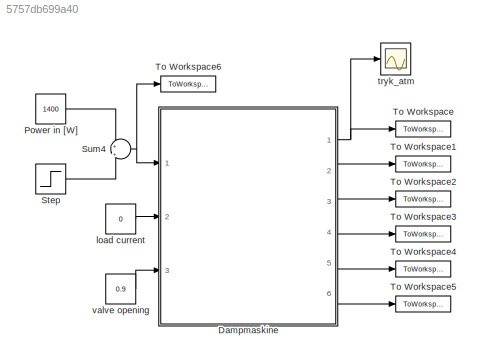
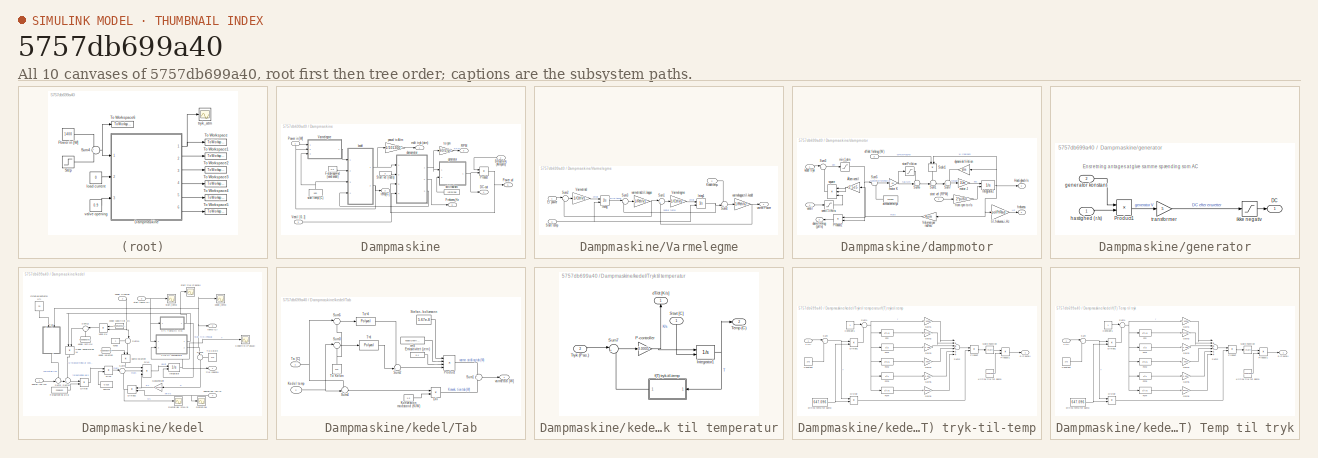
[diagram: thumbnail index - all 10 canvases of the model, root first then tree order]
MODEL slx_5757db699a40
KIND model
CONFIG AbsTol = auto
CONFIG EnableMultiTasking = on
CONFIG FixedStep = auto
CONFIG MaxStep = auto
CONFIG MinStep = auto
CONFIG RelTol = 2e-6
CONFIG SampleTimeConstraint = Unconstrained
CONFIG Solver = ode45
CONFIG SolverName = ode45
CONFIG StartTime = 0.0
CONFIG StopTime = 250
BLOCK [SubSystem] Dampmaskine
  Ports = [3, 6]
  RequestExecContextInheritance = off
  Variant = off
BLOCK [Inport] Dampmaskine/Belastning (Ampere)
  IconDisplay = Port number
  Port = 2
BLOCK [Outport] Dampmaskine/DC-out
  IconDisplay = Port number
  Port = 4
BLOCK [Outport] Dampmaskine/Frekvens_Hz
  IconDisplay = Port number
  Port = 6
BLOCK [Constant] Dampmaskine/Fyldningsgrad (vand andel)
  Value = 0.5
BLOCK [Inport] Dampmaskine/Power in [W]
  IconDisplay = Port number
BLOCK [Outport] Dampmaskine/Power ud
  IconDisplay = Port number
  Port = 5
BLOCK [Product] Dampmaskine/Product
  InputSameDT = off
  OutDataTypeStr = Inherit: Inherit via internal rule
  Ports = [2, 1]
  SaturateOnIntegerOverflow = off
BLOCK [Outport] Dampmaskine/RPM
  IconDisplay = Port number
  Port = 3
BLOCK [Constant] Dampmaskine/Start vel (rad//s)
  Value = 0
BLOCK [SubSystem] Dampmaskine/Varmelegme
  Ports = [3, 1]
  RequestExecContextInheritance = off
  Variant = off
BLOCK [Inport] Dampmaskine/Varmelegme/El power
  IconDisplay = Port number
BLOCK [Integrator] Dampmaskine/Varmelegme/Integ
  InitialConditionSource = external
  Ports = [2, 1]
BLOCK [Integrator] Dampmaskine/Varmelegme/Integ1
  InitialConditionSource = external
  Ports = [2, 1]
BLOCK [Inport] Dampmaskine/Varmelegme/Kedeltemp.
  IconDisplay = Port number
  Port = 2
BLOCK [Inport] Dampmaskine/Varmelegme/Start temp
  IconDisplay = Port number
  Port = 3
BLOCK [Sum] Dampmaskine/Varmelegme/Sum1
  IconShape = round
  InputSameDT = off
  Inputs = |+-
  OutDataTypeStr = Inherit: Inherit via internal rule
  Ports = [2, 1]
  SaturateOnIntegerOverflow = off
BLOCK [Sum] Dampmaskine/Varmelegme/Sum2
  IconShape = round
  InputSameDT = off
  Inputs = |+-
  OutDataTypeStr = Inherit: Inherit via internal rule
  Ports = [2, 1]
  SaturateOnIntegerOverflow = off
BLOCK [Sum] Dampmaskine/Varmelegme/Sum3
  IconShape = round
  InputSameDT = off
  Inputs = |+-
  OutDataTypeStr = Inherit: Inherit via internal rule
  Ports = [2, 1]
  SaturateOnIntegerOverflow = off
BLOCK [Sum] Dampmaskine/Varmelegme/Sum4
  IconShape = round
  InputSameDT = off
  Inputs = -+|
  OutDataTypeStr = Inherit: Inherit via internal rule
  Ports = [2, 1]
  SaturateOnIntegerOverflow = off
BLOCK [Gain] Dampmaskine/Varmelegme/Varmelegme
  Gain = 1/CthV2
  OutDataTypeStr = Inherit: Inherit via internal rule
  ParamDataTypeStr = Inherit: Inherit via internal rule
  SaturateOnIntegerOverflow = off
BLOCK [Gain] Dampmaskine/Varmelegme/Varmetråd
  Gain = 1/CthV1
  OutDataTypeStr = Inherit: Inherit via internal rule
  ParamDataTypeStr = Inherit: Inherit via internal rule
  SaturateOnIntegerOverflow = off
BLOCK [Outport] Dampmaskine/Varmelegme/varme Power
  IconDisplay = Port number
BLOCK [Gain] Dampmaskine/Varmelegme/varmekappe-til-kedel
  Gain = 1/RthV2
  OutDataTypeStr = Inherit: Inherit via internal rule
  ParamDataTypeStr = Inherit: Inherit via internal rule
  SaturateOnIntegerOverflow = off
BLOCK [Gain] Dampmaskine/Varmelegme/varmetråd-til-kappe
  Gain = 1/RthV1
  OutDataTypeStr = Inherit: Inherit via internal rule
  ParamDataTypeStr = Inherit: Inherit via internal rule
  SaturateOnIntegerOverflow = off
BLOCK [Inport] Dampmaskine/Ventil [0..1]
  IconDisplay = Port number
  Port = 3
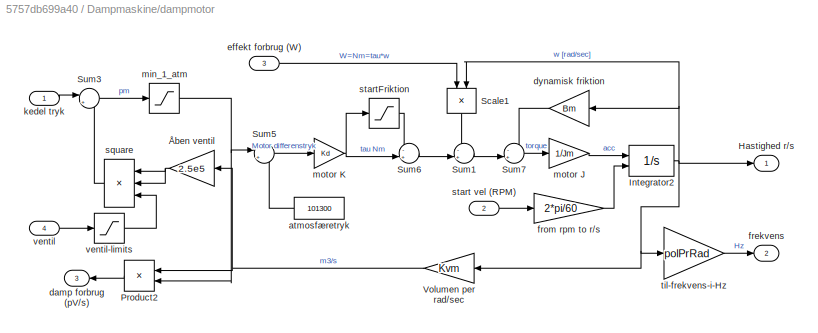
BLOCK [SubSystem] Dampmaskine/dampmotor
  Ports = [4, 3]
  RequestExecContextInheritance = off
  Variant = off
BLOCK [Outport] Dampmaskine/dampmotor/Hastighed r//s
  IconDisplay = Port number
BLOCK [Integrator] Dampmaskine/dampmotor/Integrator2
  InitialCondition = 1332/60*2*pi
  InitialConditionSource = external
  LimitOutput = on
  LowerSaturationLimit = 0.001
  Ports = [2, 1]
BLOCK [Product] Dampmaskine/dampmotor/Product2
  InputSameDT = off
  OutDataTypeStr = Inherit: Inherit via internal rule
  Ports = [2, 1]
  SaturateOnIntegerOverflow = off
BLOCK [Product] Dampmaskine/dampmotor/Scale1
  InputSameDT = off
  Inputs = */
  OutDataTypeStr = Inherit: Inherit via internal rule
  Ports = [2, 1]
  RndMeth = Floor
  SaturateOnIntegerOverflow = off
BLOCK [Sum] Dampmaskine/dampmotor/Sum1
  IconShape = round
  InputSameDT = off
  Inputs = -+|
  OutDataTypeStr = Inherit: Inherit via internal rule
  Ports = [2, 1]
  SaturateOnIntegerOverflow = off
BLOCK [Sum] Dampmaskine/dampmotor/Sum3
  IconShape = round
  InputSameDT = off
  Inputs = |+-
  OutDataTypeStr = Inherit: Inherit via internal rule
  Ports = [2, 1]
  SaturateOnIntegerOverflow = off
BLOCK [Sum] Dampmaskine/dampmotor/Sum5
  IconShape = round
  InputSameDT = off
  Inputs = |+-
  OutDataTypeStr = Inherit: Inherit via internal rule
  Ports = [2, 1]
  SaturateOnIntegerOverflow = off
BLOCK [Sum] Dampmaskine/dampmotor/Sum6
  IconShape = round
  InputSameDT = off
  Inputs = -+|
  OutDataTypeStr = Inherit: Inherit via internal rule
  Ports = [2, 1]
  SaturateOnIntegerOverflow = off
BLOCK [Sum] Dampmaskine/dampmotor/Sum7
  IconShape = round
  InputSameDT = off
  Inputs = -+|
  OutDataTypeStr = Inherit: Inherit via internal rule
  Ports = [2, 1]
  SaturateOnIntegerOverflow = off
BLOCK [Gain] Dampmaskine/dampmotor/Volumen per rad//sec
  Gain = Kvm
  OutDataTypeStr = Inherit: Inherit via internal rule
  ParamDataTypeStr = Inherit: Inherit via internal rule
  SaturateOnIntegerOverflow = off
BLOCK [Constant] Dampmaskine/dampmotor/atmosfæretryk
  Value = 101300
BLOCK [Outport] Dampmaskine/dampmotor/damp forbrug (pV//s)
  IconDisplay = Port number
  Port = 3
BLOCK [Gain] Dampmaskine/dampmotor/dynamisk friktion
  Gain = Bm
  OutDataTypeStr = Inherit: Inherit via internal rule
  ParamDataTypeStr = Inherit: Inherit via internal rule
  SaturateOnIntegerOverflow = off
BLOCK [Inport] Dampmaskine/dampmotor/effekt forbrug (W)
  IconDisplay = Port number
  Port = 3
BLOCK [Outport] Dampmaskine/dampmotor/frekvens
  IconDisplay = Port number
  Port = 2
BLOCK [Gain] Dampmaskine/dampmotor/from rpm to r//s
  Gain = 2*pi/60
  OutDataTypeStr = Inherit: Inherit via internal rule
  ParamDataTypeStr = Inherit: Inherit via internal rule
  SaturateOnIntegerOverflow = off
BLOCK [Inport] Dampmaskine/dampmotor/kedel tryk
  IconDisplay = Port number
BLOCK [Saturate] Dampmaskine/dampmotor/min_1_atm
  InputPortMap = u0
  LowerLimit = 101300
  Ports = [1, 1]
  UpperLimit = 1e8
BLOCK [Gain] Dampmaskine/dampmotor/motor J
  Gain = 1/Jm
  OutDataTypeStr = Inherit: Inherit via internal rule
  ParamDataTypeStr = Inherit: Inherit via internal rule
  SaturateOnIntegerOverflow = off
BLOCK [Gain] Dampmaskine/dampmotor/motor K
  Gain = Kd
  OutDataTypeStr = Inherit: Inherit via internal rule
  ParamDataTypeStr = Inherit: Inherit via internal rule
  SaturateOnIntegerOverflow = off
BLOCK [Product] Dampmaskine/dampmotor/square
  InputSameDT = off
  Inputs = **/
  OutDataTypeStr = Inherit: Inherit via internal rule
  Ports = [3, 1]
  SaturateOnIntegerOverflow = off
BLOCK [Inport] Dampmaskine/dampmotor/start vel (RPM)
  IconDisplay = Port number
  Port = 2
BLOCK [Saturate] Dampmaskine/dampmotor/startFriktion
  InputPortMap = u0
  LowerLimit = -startFriction
  Ports = [1, 1]
  UpperLimit = startFriction
BLOCK [Gain] Dampmaskine/dampmotor/til-frekvens-i-Hz
  Gain = polPrRad
  OutDataTypeStr = Inherit: Inherit via internal rule
  ParamDataTypeStr = Inherit: Inherit via internal rule
  SaturateOnIntegerOverflow = off
BLOCK [Inport] Dampmaskine/dampmotor/ventil
  IconDisplay = Port number
  Port = 4
BLOCK [Saturate] Dampmaskine/dampmotor/ventil-limits
  InputPortMap = u0
  LowerLimit = 1e-5
  Ports = [1, 1]
  UpperLimit = 1
BLOCK [Gain] Dampmaskine/dampmotor/Åben ventil
  Gain = 2.5e5
  OutDataTypeStr = Inherit: Inherit via internal rule
  ParamDataTypeStr = Inherit: Inherit via internal rule
  SaturateOnIntegerOverflow = off
BLOCK [SubSystem] Dampmaskine/generator
  Ports = [2, 1]
  RequestExecContextInheritance = off
  Variant = off
BLOCK [Outport] Dampmaskine/generator/DC
  IconDisplay = Port number
BLOCK [Product] Dampmaskine/generator/Product1
  InputSameDT = off
  OutDataTypeStr = Inherit: Inherit via internal rule
  Ports = [2, 1]
  SaturateOnIntegerOverflow = off
BLOCK [Inport] Dampmaskine/generator/generator konstant
  IconDisplay = Port number
  Port = 2
BLOCK [Inport] Dampmaskine/generator/hastighed (r//s)
  IconDisplay = Port number
BLOCK [Saturate] Dampmaskine/generator/ikke negativ
  InputPortMap = u0
  LowerLimit = 0
  Ports = [1, 1]
  UpperLimit = 300
BLOCK [Gain] Dampmaskine/generator/transformer
  Gain = 5
  OutDataTypeStr = Inherit: Inherit via internal rule
  ParamDataTypeStr = Inherit: Inherit via internal rule
  SaturateOnIntegerOverflow = off
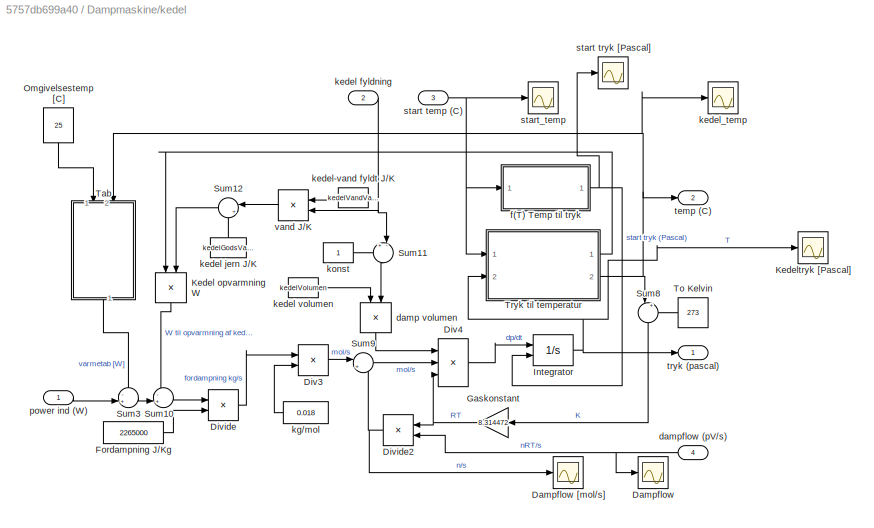
BLOCK [SubSystem] Dampmaskine/kedel
  Ports = [4, 2]
  RequestExecContextInheritance = off
  Variant = off
BLOCK [Scope] Dampmaskine/kedel/Dampflow
  NumInputPorts = 1
  Ports = [1]
  ScopeSpecificationString = C++SS(StrPVP('Location','[69, 361, 1100, 1103]'),StrPVP('Open','off'),StrPVP('ZoomMode','xonly'),MxPVP('AxesTitles',53,'struct(''axes1'',''%<SignalLabel>'')'),MxPVP('ScopeGraphics',56,'struct(''FigureColor'',''[0.5 0.5 0.5]'',''AxesColor'',''[0 0 0]'',''AxesTickColor'',''[1 1 1]'',''LineColors'',''[1 1 0;1 0 1;0 1 1;1 0 0;0 1 0;0 0 1]'',''LineStyles'',''-|-|-|-|-|-'',''LineWidths'',''[0.5 0.5 0.5 ...<+345ch>
BLOCK [Scope] Dampmaskine/kedel/Dampflow [mol//s]
  NumInputPorts = 1
  Ports = [1]
  ScopeSpecificationString = C++SS(StrPVP('Location','[69, 361, 1100, 1103]'),StrPVP('Open','off'),StrPVP('ZoomMode','xonly'),MxPVP('AxesTitles',53,'struct(''axes1'',''%<SignalLabel>'')'),MxPVP('ScopeGraphics',56,'struct(''FigureColor'',''[0.5 0.5 0.5]'',''AxesColor'',''[0 0 0]'',''AxesTickColor'',''[1 1 1]'',''LineColors'',''[1 1 0;1 0 1;0 1 1;1 0 0;0 1 0;0 0 1]'',''LineStyles'',''-|-|-|-|-|-'',''LineWidths'',''[0.5 0.5 0.5 ...<+345ch>
BLOCK [Product] Dampmaskine/kedel/Div3
  InputSameDT = off
  Inputs = */
  OutDataTypeStr = Inherit: Inherit via internal rule
  Ports = [2, 1]
  RndMeth = Floor
  SaturateOnIntegerOverflow = off
BLOCK [Product] Dampmaskine/kedel/Div4
  InputSameDT = off
  Inputs = /**
  OutDataTypeStr = Inherit: Inherit via internal rule
  Ports = [3, 1]
  RndMeth = Floor
  SaturateOnIntegerOverflow = off
BLOCK [Product] Dampmaskine/kedel/Divide
  InputSameDT = off
  Inputs = */
  OutDataTypeStr = Inherit: Inherit via internal rule
  Ports = [2, 1]
  RndMeth = Floor
  SaturateOnIntegerOverflow = off
BLOCK [Product] Dampmaskine/kedel/Divide2
  InputSameDT = off
  Inputs = /*
  OutDataTypeStr = Inherit: Inherit via internal rule
  Ports = [2, 1]
  RndMeth = Floor
  SaturateOnIntegerOverflow = off
BLOCK [Constant] Dampmaskine/kedel/Fordampning J//Kg
  Value = 2265000
BLOCK [Gain] Dampmaskine/kedel/Gaskonstant
  Gain = 8.314472
  OutDataTypeStr = Inherit: Inherit via internal rule
  ParamDataTypeStr = Inherit: Inherit via internal rule
  SaturateOnIntegerOverflow = off
BLOCK [Integrator] Dampmaskine/kedel/Integrator
  InitialCondition = 122.7
  InitialConditionSource = external
  Ports = [2, 1]
BLOCK [Product] Dampmaskine/kedel/Kedel opvarmning W
  InputSameDT = off
  OutDataTypeStr = Inherit: Inherit via internal rule
  Ports = [2, 1]
  SaturateOnIntegerOverflow = off
BLOCK [Scope] Dampmaskine/kedel/Kedeltryk [Pascal]
  NumInputPorts = 1
  Ports = [1]
  ScopeSpecificationString = C++SS(StrPVP('Location','[69, 361, 1100, 1103]'),StrPVP('Open','off'),StrPVP('ZoomMode','yonly'),MxPVP('AxesTitles',53,'struct(''axes1'',''%<SignalLabel>'')'),MxPVP('ScopeGraphics',56,'struct(''FigureColor'',''[0.5 0.5 0.5]'',''AxesColor'',''[0 0 0]'',''AxesTickColor'',''[1 1 1]'',''LineColors'',''[1 1 0;1 0 1;0 1 1;1 0 0;0 1 0;0 0 1]'',''LineStyles'',''-|-|-|-|-|-'',''LineWidths'',''[0.5 0.5 0.5 ...<+345ch>  <repeated x4 — deduplicated; at blocks: Kedeltryk [Pascal], kedel_temp, start tryk [Pascal], start_temp>
BLOCK [Constant] Dampmaskine/kedel/Omgivelsestemp [C]
  Value = 25
BLOCK [Sum] Dampmaskine/kedel/Sum10
  IconShape = round
  InputSameDT = off
  Inputs = -+|
  OutDataTypeStr = Inherit: Inherit via internal rule
  Ports = [2, 1]
  SaturateOnIntegerOverflow = off
BLOCK [Sum] Dampmaskine/kedel/Sum11
  IconShape = round
  InputSameDT = off
  Inputs = +-|
  OutDataTypeStr = Inherit: Inherit via internal rule
  Ports = [2, 1]
  SaturateOnIntegerOverflow = off
BLOCK [Sum] Dampmaskine/kedel/Sum12
  IconShape = round
  InputSameDT = off
  Inputs = |++
  OutDataTypeStr = Inherit: Inherit via internal rule
  Ports = [2, 1]
  SaturateOnIntegerOverflow = off
BLOCK [Sum] Dampmaskine/kedel/Sum3
  IconShape = round
  InputSameDT = off
  Inputs = -+|
  OutDataTypeStr = Inherit: Inherit via internal rule
  Ports = [2, 1]
  SaturateOnIntegerOverflow = off
BLOCK [Sum] Dampmaskine/kedel/Sum8
  IconShape = round
  InputSameDT = off
  Inputs = |++
  OutDataTypeStr = Inherit: Inherit via internal rule
  Ports = [2, 1]
  SaturateOnIntegerOverflow = off
BLOCK [Sum] Dampmaskine/kedel/Sum9
  IconShape = round
  InputSameDT = off
  Inputs = |+-
  OutDataTypeStr = Inherit: Inherit via internal rule
  Ports = [2, 1]
  SaturateOnIntegerOverflow = off
BLOCK [SubSystem] Dampmaskine/kedel/Tab
  Ports = [2, 1]
  RequestExecContextInheritance = off
  Variant = off
BLOCK [Product] Dampmaskine/kedel/Tab/Div
  InputSameDT = off
  Inputs = */
  OutDataTypeStr = Inherit: Inherit via internal rule
  Ports = [2, 1]
  RndMeth = Floor
  SaturateOnIntegerOverflow = off
BLOCK [Constant] Dampmaskine/kedel/Tab/Emissitivitet (jern)
  Value = 0.4
BLOCK [Inport] Dampmaskine/kedel/Tab/Kedel temp
  IconDisplay = Port number
  Port = 2
BLOCK [Constant] Dampmaskine/kedel/Tab/Konvektion modstand (K//W)
  Value = 1.5
BLOCK [Product] Dampmaskine/kedel/Tab/Product
  InputSameDT = off
  Inputs = 4
  OutDataTypeStr = Inherit: Inherit via internal rule
  Ports = [4, 1]
  SaturateOnIntegerOverflow = off
BLOCK [Constant] Dampmaskine/kedel/Tab/Stefan- boltzmann
  Value = 5.67e-8
BLOCK [Sum] Dampmaskine/kedel/Tab/Sum1
  IconShape = round
  InputSameDT = off
  Inputs = +|+
  OutDataTypeStr = Inherit: Inherit via internal rule
  Ports = [2, 1]
  SaturateOnIntegerOverflow = off
BLOCK [Sum] Dampmaskine/kedel/Tab/Sum2
  IconShape = round
  InputSameDT = off
  Inputs = -+|
  OutDataTypeStr = Inherit: Inherit via internal rule
  Ports = [2, 1]
  SaturateOnIntegerOverflow = off
BLOCK [Sum] Dampmaskine/kedel/Tab/Sum3
  IconShape = round
  InputSameDT = off
  Inputs = |++
  OutDataTypeStr = Inherit: Inherit via internal rule
  Ports = [2, 1]
  SaturateOnIntegerOverflow = off
BLOCK [Sum] Dampmaskine/kedel/Tab/Sum4
  IconShape = round
  InputSameDT = off
  Inputs = -+|
  OutDataTypeStr = Inherit: Inherit via internal rule
  Ports = [2, 1]
  SaturateOnIntegerOverflow = off
BLOCK [Sum] Dampmaskine/kedel/Tab/Sum5
  IconShape = round
  InputSameDT = off
  Inputs = |++
  OutDataTypeStr = Inherit: Inherit via internal rule
  Ports = [2, 1]
  SaturateOnIntegerOverflow = off
BLOCK [Polyval] Dampmaskine/kedel/Tab/T^4
  Coefs = [1,0,0,0,0 ]
BLOCK [Inport] Dampmaskine/kedel/Tab/Ta [C]
  IconDisplay = Port number
BLOCK [Polyval] Dampmaskine/kedel/Tab/Ta^4
  Coefs = [1,0,0,0,0 ]
BLOCK [Constant] Dampmaskine/kedel/Tab/To Kelvin
  Value = 273
BLOCK [Constant] Dampmaskine/kedel/Tab/m^3
  Value = kedelOverflade
BLOCK [Outport] Dampmaskine/kedel/Tab/varmetab [W]
  IconDisplay = Port number
BLOCK [Constant] Dampmaskine/kedel/To Kelvin
  Value = 273
BLOCK [SubSystem] Dampmaskine/kedel/Tryk til temperatur
  Ports = [2, 2]
  RequestExecContextInheritance = off
  Variant = off
BLOCK [Outport] Dampmaskine/kedel/Tryk til temperatur/ dT//dt [K//s]
  IconDisplay = Port number
BLOCK [Integrator] Dampmaskine/kedel/Tryk til temperatur/Integrator1
  InitialCondition = 122.7
  InitialConditionSource = external
  Ports = [2, 1]
BLOCK [Gain] Dampmaskine/kedel/Tryk til temperatur/P-controller 
  Gain = 0.0005
  OutDataTypeStr = Inherit: Inherit via internal rule
  ParamDataTypeStr = Inherit: Inherit via internal rule
  SaturateOnIntegerOverflow = off
BLOCK [Inport] Dampmaskine/kedel/Tryk til temperatur/Start [C]
  IconDisplay = Port number
BLOCK [Sum] Dampmaskine/kedel/Tryk til temperatur/Sum7
  IconShape = round
  InputSameDT = off
  Inputs = |+-
  OutDataTypeStr = Inherit: Inherit via internal rule
  Ports = [2, 1]
  SaturateOnIntegerOverflow = off
BLOCK [Outport] Dampmaskine/kedel/Tryk til temperatur/Temp (C)
  IconDisplay = Port number
  Port = 2
BLOCK [Inport] Dampmaskine/kedel/Tryk til temperatur/Tryk (Pas.)
  IconDisplay = Port number
  Port = 2
BLOCK [SubSystem] Dampmaskine/kedel/Tryk til temperatur/f(T) tryk-til-temp
  Ports = [1, 1]
  RequestExecContextInheritance = off
  Variant = off
BLOCK [Constant] Dampmaskine/kedel/Tryk til temperatur/f(T) tryk-til-temp/Constant
  Value = 273
BLOCK [Constant] Dampmaskine/kedel/Tryk til temperatur/f(T) tryk-til-temp/Constant1
BLOCK [Product] Dampmaskine/kedel/Tryk til temperatur/f(T) tryk-til-temp/Divide
  InputSameDT = off
  Inputs = /*
  OutDataTypeStr = Inherit: Inherit via internal rule
  Ports = [2, 1]
  RndMeth = Floor
  SaturateOnIntegerOverflow = off
BLOCK [Product] Dampmaskine/kedel/Tryk til temperatur/f(T) tryk-til-temp/Divide1
  InputSameDT = off
  Inputs = */
  OutDataTypeStr = Inherit: Inherit via internal rule
  Ports = [2, 1]
  RndMeth = Floor
  SaturateOnIntegerOverflow = off
BLOCK [Fcn] Dampmaskine/kedel/Tryk til temperatur/f(T) tryk-til-temp/Fcn
  Expr = u^1.5
BLOCK [Fcn] Dampmaskine/kedel/Tryk til temperatur/f(T) tryk-til-temp/Fcn1
  Expr = u^3
BLOCK [Fcn] Dampmaskine/kedel/Tryk til temperatur/f(T) tryk-til-temp/Fcn2
  Expr = u^3.5
BLOCK [Fcn] Dampmaskine/kedel/Tryk til temperatur/f(T) tryk-til-temp/Fcn3
  Expr = u^4
BLOCK [Fcn] Dampmaskine/kedel/Tryk til temperatur/f(T) tryk-til-temp/Fcn4
  Expr = u^7.5
BLOCK [Gain] Dampmaskine/kedel/Tryk til temperatur/f(T) tryk-til-temp/Gain1
  Gain = -7.85951783
  OutDataTypeStr = Inherit: Inherit via internal rule
  ParamDataTypeStr = Inherit: Inherit via internal rule
  SaturateOnIntegerOverflow = off
BLOCK [Gain] Dampmaskine/kedel/Tryk til temperatur/f(T) tryk-til-temp/Gain2
  Gain = 1.84408259
  OutDataTypeStr = Inherit: Inherit via internal rule
  ParamDataTypeStr = Inherit: Inherit via internal rule
  SaturateOnIntegerOverflow = off
BLOCK [Gain] Dampmaskine/kedel/Tryk til temperatur/f(T) tryk-til-temp/Gain3
  Gain = -11.7866497
  OutDataTypeStr = Inherit: Inherit via internal rule
  ParamDataTypeStr = Inherit: Inherit via internal rule
  SaturateOnIntegerOverflow = off
BLOCK [Gain] Dampmaskine/kedel/Tryk til temperatur/f(T) tryk-til-temp/Gain4
  Gain = 22.6807411
  OutDataTypeStr = Inherit: Inherit via internal rule
  ParamDataTypeStr = Inherit: Inherit via internal rule
  SaturateOnIntegerOverflow = off
BLOCK [Gain] Dampmaskine/kedel/Tryk til temperatur/f(T) tryk-til-temp/Gain5
  Gain = -15.9618719
  OutDataTypeStr = Inherit: Inherit via internal rule
  ParamDataTypeStr = Inherit: Inherit via internal rule
  SaturateOnIntegerOverflow = off
BLOCK [Gain] Dampmaskine/kedel/Tryk til temperatur/f(T) tryk-til-temp/Gain6
  Gain = 1.80122502
  OutDataTypeStr = Inherit: Inherit via internal rule
  ParamDataTypeStr = Inherit: Inherit via internal rule
  SaturateOnIntegerOverflow = off
BLOCK [Constant] Dampmaskine/kedel/Tryk til temperatur/f(T) tryk-til-temp/Kritisk tryk for damp
  Value = 22064000
BLOCK [Math] Dampmaskine/kedel/Tryk til temperatur/f(T) tryk-til-temp/Math Function
  Ports = [1, 1]
BLOCK [Product] Dampmaskine/kedel/Tryk til temperatur/f(T) tryk-til-temp/Product
  InputSameDT = off
  OutDataTypeStr = Inherit: Inherit via internal rule
  Ports = [2, 1]
  SaturateOnIntegerOverflow = off
BLOCK [Product] Dampmaskine/kedel/Tryk til temperatur/f(T) tryk-til-temp/Product1
  InputSameDT = off
  OutDataTypeStr = Inherit: Inherit via internal rule
  Ports = [2, 1]
  SaturateOnIntegerOverflow = off
BLOCK [Sum] Dampmaskine/kedel/Tryk til temperatur/f(T) tryk-til-temp/Sum
  IconShape = round
  InputSameDT = off
  Inputs = |++
  OutDataTypeStr = Inherit: Inherit via internal rule
  Ports = [2, 1]
  SaturateOnIntegerOverflow = off
BLOCK [Sum] Dampmaskine/kedel/Tryk til temperatur/f(T) tryk-til-temp/Sum1
  IconShape = round
  InputSameDT = off
  Inputs = |+-
  OutDataTypeStr = Inherit: Inherit via internal rule
  Ports = [2, 1]
  SaturateOnIntegerOverflow = off
BLOCK [Sum] Dampmaskine/kedel/Tryk til temperatur/f(T) tryk-til-temp/Sum2
  InputSameDT = off
  Inputs = |++++++
  OutDataTypeStr = Inherit: Inherit via internal rule
  Ports = [6, 1]
  SaturateOnIntegerOverflow = off
BLOCK [Inport] Dampmaskine/kedel/Tryk til temperatur/f(T) tryk-til-temp/T (C)
  IconDisplay = Port number
BLOCK [Constant] Dampmaskine/kedel/Tryk til temperatur/f(T) tryk-til-temp/kritisk temp for damp
  Value = 647.096
BLOCK [Outport] Dampmaskine/kedel/Tryk til temperatur/f(T) tryk-til-temp/p (Pascal)
  IconDisplay = Port number
BLOCK [Product] Dampmaskine/kedel/damp volumen
  InputSameDT = off
  OutDataTypeStr = Inherit: Inherit via internal rule
  Ports = [2, 1]
  SaturateOnIntegerOverflow = off
BLOCK [Inport] Dampmaskine/kedel/dampflow (pV//s)
  IconDisplay = Port number
  Port = 4
BLOCK [SubSystem] Dampmaskine/kedel/f(T) Temp til tryk
  Ports = [1, 1]
  RequestExecContextInheritance = off
  Variant = off
BLOCK [Constant] Dampmaskine/kedel/f(T) Temp til tryk/Constant
  Value = 273
BLOCK [Constant] Dampmaskine/kedel/f(T) Temp til tryk/Constant1
BLOCK [Product] Dampmaskine/kedel/f(T) Temp til tryk/Divide
  InputSameDT = off
  Inputs = /*
  OutDataTypeStr = Inherit: Inherit via internal rule
  Ports = [2, 1]
  RndMeth = Floor
  SaturateOnIntegerOverflow = off
BLOCK [Product] Dampmaskine/kedel/f(T) Temp til tryk/Divide1
  InputSameDT = off
  Inputs = */
  OutDataTypeStr = Inherit: Inherit via internal rule
  Ports = [2, 1]
  RndMeth = Floor
  SaturateOnIntegerOverflow = off
BLOCK [Fcn] Dampmaskine/kedel/f(T) Temp til tryk/Fcn
  Expr = u^1.5
BLOCK [Fcn] Dampmaskine/kedel/f(T) Temp til tryk/Fcn1
  Expr = u^3
BLOCK [Fcn] Dampmaskine/kedel/f(T) Temp til tryk/Fcn2
  Expr = u^3.5
BLOCK [Fcn] Dampmaskine/kedel/f(T) Temp til tryk/Fcn3
  Expr = u^4
BLOCK [Fcn] Dampmaskine/kedel/f(T) Temp til tryk/Fcn4
  Expr = u^7.5
BLOCK [Gain] Dampmaskine/kedel/f(T) Temp til tryk/Gain1
  Gain = -7.85951783
  OutDataTypeStr = Inherit: Inherit via internal rule
  ParamDataTypeStr = Inherit: Inherit via internal rule
  SaturateOnIntegerOverflow = off
BLOCK [Gain] Dampmaskine/kedel/f(T) Temp til tryk/Gain2
  Gain = 1.84408259
  OutDataTypeStr = Inherit: Inherit via internal rule
  ParamDataTypeStr = Inherit: Inherit via internal rule
  SaturateOnIntegerOverflow = off
BLOCK [Gain] Dampmaskine/kedel/f(T) Temp til tryk/Gain3
  Gain = -11.7866497
  OutDataTypeStr = Inherit: Inherit via internal rule
  ParamDataTypeStr = Inherit: Inherit via internal rule
  SaturateOnIntegerOverflow = off
BLOCK [Gain] Dampmaskine/kedel/f(T) Temp til tryk/Gain4
  Gain = 22.6807411
  OutDataTypeStr = Inherit: Inherit via internal rule
  ParamDataTypeStr = Inherit: Inherit via internal rule
  SaturateOnIntegerOverflow = off
BLOCK [Gain] Dampmaskine/kedel/f(T) Temp til tryk/Gain5
  Gain = -15.9618719
  OutDataTypeStr = Inherit: Inherit via internal rule
  ParamDataTypeStr = Inherit: Inherit via internal rule
  SaturateOnIntegerOverflow = off
BLOCK [Gain] Dampmaskine/kedel/f(T) Temp til tryk/Gain6
  Gain = 1.80122502
  OutDataTypeStr = Inherit: Inherit via internal rule
  ParamDataTypeStr = Inherit: Inherit via internal rule
  SaturateOnIntegerOverflow = off
BLOCK [Constant] Dampmaskine/kedel/f(T) Temp til tryk/Kritisk tryk for damp
  Value = 22064000
BLOCK [Math] Dampmaskine/kedel/f(T) Temp til tryk/Math Function
  Ports = [1, 1]
BLOCK [Product] Dampmaskine/kedel/f(T) Temp til tryk/Product
  InputSameDT = off
  OutDataTypeStr = Inherit: Inherit via internal rule
  Ports = [2, 1]
  SaturateOnIntegerOverflow = off
BLOCK [Product] Dampmaskine/kedel/f(T) Temp til tryk/Product1
  InputSameDT = off
  OutDataTypeStr = Inherit: Inherit via internal rule
  Ports = [2, 1]
  SaturateOnIntegerOverflow = off
BLOCK [Sum] Dampmaskine/kedel/f(T) Temp til tryk/Sum
  IconShape = round
  InputSameDT = off
  Inputs = |++
  OutDataTypeStr = Inherit: Inherit via internal rule
  Ports = [2, 1]
  SaturateOnIntegerOverflow = off
BLOCK [Sum] Dampmaskine/kedel/f(T) Temp til tryk/Sum1
  IconShape = round
  InputSameDT = off
  Inputs = |+-
  OutDataTypeStr = Inherit: Inherit via internal rule
  Ports = [2, 1]
  SaturateOnIntegerOverflow = off
BLOCK [Sum] Dampmaskine/kedel/f(T) Temp til tryk/Sum2
  InputSameDT = off
  Inputs = |++++++
  OutDataTypeStr = Inherit: Inherit via internal rule
  Ports = [6, 1]
  SaturateOnIntegerOverflow = off
BLOCK [Inport] Dampmaskine/kedel/f(T) Temp til tryk/T (C)
  IconDisplay = Port number
BLOCK [Constant] Dampmaskine/kedel/f(T) Temp til tryk/kritisk temp for damp
  Value = 647.096
BLOCK [Outport] Dampmaskine/kedel/f(T) Temp til tryk/p (Pascal)
  IconDisplay = Port number
BLOCK [Inport] Dampmaskine/kedel/kedel fyldning
  IconDisplay = Port number
  Port = 2
BLOCK [Constant] Dampmaskine/kedel/kedel jern J//K
  Value = kedelGodsVarmekapacitet
BLOCK [Constant] Dampmaskine/kedel/kedel volumen 
  Value = kedelVolumen
BLOCK [Constant] Dampmaskine/kedel/kedel-vand fyldt J//K
  Value = kedelVandVarmekapacitet
BLOCK [Scope] Dampmaskine/kedel/kedel_temp
  NumInputPorts = 1
  Ports = [1]
BLOCK [Constant] Dampmaskine/kedel/kg//mol
  Value = 0.018
BLOCK [Constant] Dampmaskine/kedel/konst
BLOCK [Inport] Dampmaskine/kedel/power ind  (W)
  IconDisplay = Port number
BLOCK [Inport] Dampmaskine/kedel/start temp (C)
  IconDisplay = Port number
  Port = 3
BLOCK [Scope] Dampmaskine/kedel/start tryk [Pascal]
  NumInputPorts = 1
  Ports = [1]
BLOCK [Scope] Dampmaskine/kedel/start_temp 
  NumInputPorts = 1
  Ports = [1]
BLOCK [Outport] Dampmaskine/kedel/temp (C)
  IconDisplay = Port number
  Port = 2
BLOCK [Outport] Dampmaskine/kedel/tryk (pascal)
  IconDisplay = Port number
BLOCK [Product] Dampmaskine/kedel/vand J//K
  InputSameDT = off
  OutDataTypeStr = Inherit: Inherit via internal rule
  Ports = [2, 1]
  SaturateOnIntegerOverflow = off
BLOCK [Outport] Dampmaskine/målt tryk (atm)
  IconDisplay = Port number
BLOCK [Gain] Dampmaskine/pascal to Atm
  Gain = 1/101300
  OutDataTypeStr = Inherit: Inherit via internal rule
  ParamDataTypeStr = Inherit: Inherit via internal rule
  SaturateOnIntegerOverflow = off
BLOCK [Constant] Dampmaskine/start temp (C)
  Value = 100
BLOCK [Outport] Dampmaskine/temp[C]
  IconDisplay = Port number
  Port = 2
BLOCK [Gain] Dampmaskine/to rpm
  Gain = 60/2/pi
  OutDataTypeStr = Inherit: Inherit via internal rule
  ParamDataTypeStr = Inherit: Inherit via internal rule
  SaturateOnIntegerOverflow = off
BLOCK [Constant] Dampmaskine/volt//rad//sec
  Value = voltPerRad
BLOCK [Constant] Power in [W]
  Value = 1400
BLOCK [Step] Step
  After = -50
  SampleTime = 0
  Time = 150
BLOCK [Sum] Sum4
  IconShape = round
  InputSameDT = off
  Inputs = +|+
  OutDataTypeStr = Inherit: Inherit via internal rule
  Ports = [2, 1]
  SaturateOnIntegerOverflow = off
BLOCK [ToWorkspace] To Workspace
  FixptAsFi = on
  MaxDataPoints = inf
  Ports = [1]
  SampleTime = -1
  Save2DSignal = 3-D array (concatenate along third dimension)
  SaveFormat = Timeseries
  VariableName = tryk_out
BLOCK [ToWorkspace] To Workspace1
  FixptAsFi = on
  MaxDataPoints = inf
  Ports = [1]
  SampleTime = -1
  Save2DSignal = 3-D array (concatenate along third dimension)
  SaveFormat = Timeseries
  VariableName = temperatur
BLOCK [ToWorkspace] To Workspace2
  FixptAsFi = on
  MaxDataPoints = inf
  Ports = [1]
  SampleTime = -1
  Save2DSignal = 3-D array (concatenate along third dimension)
  SaveFormat = Timeseries
  VariableName = RPM
BLOCK [ToWorkspace] To Workspace3
  FixptAsFi = on
  MaxDataPoints = inf
  Ports = [1]
  SampleTime = -1
  Save2DSignal = 3-D array (concatenate along third dimension)
  SaveFormat = Timeseries
  VariableName = DC_out
BLOCK [ToWorkspace] To Workspace4
  FixptAsFi = on
  MaxDataPoints = inf
  Ports = [1]
  SampleTime = -1
  Save2DSignal = 3-D array (concatenate along third dimension)
  SaveFormat = Timeseries
  VariableName = Power_out
BLOCK [ToWorkspace] To Workspace5
  FixptAsFi = on
  MaxDataPoints = inf
  Ports = [1]
  SampleTime = -1
  Save2DSignal = 3-D array (concatenate along third dimension)
  SaveFormat = Timeseries
  VariableName = gen_frq
BLOCK [ToWorkspace] To Workspace6
  FixptAsFi = on
  MaxDataPoints = inf
  Ports = [1]
  SampleTime = -1
  Save2DSignal = 3-D array (concatenate along third dimension)
  SaveFormat = Timeseries
  VariableName = power_in
BLOCK [Constant] load current
  Value = 0
BLOCK [Scope] tryk_atm
  NumInputPorts = 1
  Ports = [1]
  ScopeSpecificationString = Simulink.scopes.TimeScopeBlockCfg('CurrentConfiguration', extmgr.ConfigurationSet(extmgr.Configuration('Core','General UI',true),extmgr.Configuration('Core','Source UI',true),extmgr.Configuration('Sources','WiredSimulink',true,'DataLoggingSaveFormat','StructureWithTime','DataLoggingDecimation','1','DataLoggingDecimateData',true),extmgr.Configuration('Visuals','Time Domain',true,'SerializedDisplays...<+1678ch>
BLOCK [Constant] valve opening
  Value = 0.9
ANNOTATION Dampmaskine/generator: Ensretning antages at give samme spænding som AC
LINE Dampmaskine/Belastning (Ampere):1 -> Dampmaskine/Product:1
LINE Dampmaskine/Fyldningsgrad (vand andel):1 -> Dampmaskine/kedel:2
LINE Dampmaskine/Power in [W]:1 -> Dampmaskine/Varmelegme:1
NET Dampmaskine/Product:1 -> Dampmaskine/Power ud:1, Dampmaskine/dampmotor:3
LINE Dampmaskine/Start vel (rad//s):1 -> Dampmaskine/dampmotor:2
LINE Dampmaskine/Varmelegme/El power:1 -> Dampmaskine/Varmelegme/Sum2:1
NET Dampmaskine/Varmelegme/Integ1:1 -> Dampmaskine/Varmelegme/Sum3:2, Dampmaskine/Varmelegme/Sum4:2
LINE Dampmaskine/Varmelegme/Integ:1 -> Dampmaskine/Varmelegme/Sum3:1
LINE Dampmaskine/Varmelegme/Kedeltemp.:1 -> Dampmaskine/Varmelegme/Sum4:1
NET Dampmaskine/Varmelegme/Start temp:1 -> Dampmaskine/Varmelegme/Integ1:2, Dampmaskine/Varmelegme/Integ:2
LINE Dampmaskine/Varmelegme/Sum1:1 -> Dampmaskine/Varmelegme/Varmelegme:1
LINE Dampmaskine/Varmelegme/Sum2:1 -> Dampmaskine/Varmelegme/Varmetråd:1
LINE Dampmaskine/Varmelegme/Sum3:1 -> Dampmaskine/Varmelegme/varmetråd-til-kappe:1
LINE Dampmaskine/Varmelegme/Sum4:1 -> Dampmaskine/Varmelegme/varmekappe-til-kedel:1
LINE Dampmaskine/Varmelegme/Varmelegme:1 -> Dampmaskine/Varmelegme/Integ1:1
LINE Dampmaskine/Varmelegme/Varmetråd:1 -> Dampmaskine/Varmelegme/Integ:1
NET Dampmaskine/Varmelegme/varmekappe-til-kedel:1 -> Dampmaskine/Varmelegme/Sum1:2, Dampmaskine/Varmelegme/varme Power:1
NET Dampmaskine/Varmelegme/varmetråd-til-kappe:1 -> Dampmaskine/Varmelegme/Sum1:1, Dampmaskine/Varmelegme/Sum2:2
LINE Dampmaskine/Varmelegme:1 -> Dampmaskine/kedel:1
LINE Dampmaskine/Ventil [0..1]:1 -> Dampmaskine/dampmotor:4
NET Dampmaskine/dampmotor/Integrator2:1 -> Dampmaskine/dampmotor/Hastighed r//s:1, Dampmaskine/dampmotor/Scale1:2, Dampmaskine/dampmotor/Volumen per rad//sec:1, Dampmaskine/dampmotor/dynamisk friktion:1, Dampmaskine/dampmotor/til-frekvens-i-Hz:1
LINE Dampmaskine/dampmotor/Product2:1 -> Dampmaskine/dampmotor/damp forbrug (pV//s):1
LINE Dampmaskine/dampmotor/Scale1:1 -> Dampmaskine/dampmotor/Sum1:1
LINE Dampmaskine/dampmotor/Sum1:1 -> Dampmaskine/dampmotor/Sum7:2
LINE Dampmaskine/dampmotor/Sum3:1 -> Dampmaskine/dampmotor/min_1_atm:1
LINE Dampmaskine/dampmotor/Sum5:1 -> Dampmaskine/dampmotor/motor K:1
LINE Dampmaskine/dampmotor/Sum6:1 -> Dampmaskine/dampmotor/Sum1:2
LINE Dampmaskine/dampmotor/Sum7:1 -> Dampmaskine/dampmotor/motor J:1
NET Dampmaskine/dampmotor/Volumen per rad//sec:1 -> Dampmaskine/dampmotor/Product2:1, Dampmaskine/dampmotor/Åben ventil:1
LINE Dampmaskine/dampmotor/atmosfæretryk:1 -> Dampmaskine/dampmotor/Sum5:2
LINE Dampmaskine/dampmotor/dynamisk friktion:1 -> Dampmaskine/dampmotor/Sum7:1
LINE Dampmaskine/dampmotor/effekt forbrug (W):1 -> Dampmaskine/dampmotor/Scale1:1
LINE Dampmaskine/dampmotor/from rpm to r//s:1 -> Dampmaskine/dampmotor/Integrator2:2
LINE Dampmaskine/dampmotor/kedel tryk:1 -> Dampmaskine/dampmotor/Sum3:1
NET Dampmaskine/dampmotor/min_1_atm:1 -> Dampmaskine/dampmotor/Product2:2, Dampmaskine/dampmotor/Sum5:1
LINE Dampmaskine/dampmotor/motor J:1 -> Dampmaskine/dampmotor/Integrator2:1
NET Dampmaskine/dampmotor/motor K:1 -> Dampmaskine/dampmotor/Sum6:2, Dampmaskine/dampmotor/startFriktion:1
LINE Dampmaskine/dampmotor/square:1 -> Dampmaskine/dampmotor/Sum3:2
LINE Dampmaskine/dampmotor/start vel (RPM):1 -> Dampmaskine/dampmotor/from rpm to r//s:1
LINE Dampmaskine/dampmotor/startFriktion:1 -> Dampmaskine/dampmotor/Sum6:1
LINE Dampmaskine/dampmotor/til-frekvens-i-Hz:1 -> Dampmaskine/dampmotor/frekvens:1
LINE Dampmaskine/dampmotor/ventil-limits:1 -> Dampmaskine/dampmotor/square:3
LINE Dampmaskine/dampmotor/ventil:1 -> Dampmaskine/dampmotor/ventil-limits:1
NET Dampmaskine/dampmotor/Åben ventil:1 -> Dampmaskine/dampmotor/square:1, Dampmaskine/dampmotor/square:2
NET Dampmaskine/dampmotor:1 -> Dampmaskine/generator:1, Dampmaskine/to rpm:1
LINE Dampmaskine/dampmotor:2 -> Dampmaskine/Frekvens_Hz:1
LINE Dampmaskine/dampmotor:3 -> Dampmaskine/kedel:4
LINE Dampmaskine/generator/Product1:1 -> Dampmaskine/generator/transformer:1
LINE Dampmaskine/generator/generator konstant:1 -> Dampmaskine/generator/Product1:1
LINE Dampmaskine/generator/hastighed (r//s):1 -> Dampmaskine/generator/Product1:2
LINE Dampmaskine/generator/ikke negativ:1 -> Dampmaskine/generator/DC:1
LINE Dampmaskine/generator/transformer:1 -> Dampmaskine/generator/ikke negativ:1
NET Dampmaskine/generator:1 -> Dampmaskine/DC-out:1, Dampmaskine/Product:2
LINE Dampmaskine/kedel/Div3:1 -> Dampmaskine/kedel/Sum9:1
LINE Dampmaskine/kedel/Div4:1 -> Dampmaskine/kedel/Integrator:1
NET Dampmaskine/kedel/Divide2:1 -> Dampmaskine/kedel/Dampflow [mol//s]:1, Dampmaskine/kedel/Sum9:2
LINE Dampmaskine/kedel/Divide:1 -> Dampmaskine/kedel/Div3:1
LINE Dampmaskine/kedel/Fordampning J//Kg:1 -> Dampmaskine/kedel/Divide:2
NET Dampmaskine/kedel/Gaskonstant:1 -> Dampmaskine/kedel/Div4:3, Dampmaskine/kedel/Divide2:1
NET Dampmaskine/kedel/Integrator:1 -> Dampmaskine/kedel/Kedeltryk [Pascal]:1, Dampmaskine/kedel/Tryk til temperatur:2, Dampmaskine/kedel/tryk (pascal):1
LINE Dampmaskine/kedel/Kedel opvarmning W:1 -> Dampmaskine/kedel/Sum10:1
LINE Dampmaskine/kedel/Omgivelsestemp [C]:1 -> Dampmaskine/kedel/Tab:1
LINE Dampmaskine/kedel/Sum10:1 -> Dampmaskine/kedel/Divide:1
LINE Dampmaskine/kedel/Sum11:1 -> Dampmaskine/kedel/damp volumen:2
LINE Dampmaskine/kedel/Sum12:1 -> Dampmaskine/kedel/Kedel opvarmning W:2
LINE Dampmaskine/kedel/Sum3:1 -> Dampmaskine/kedel/Sum10:2
LINE Dampmaskine/kedel/Sum8:1 -> Dampmaskine/kedel/Gaskonstant:1
LINE Dampmaskine/kedel/Sum9:1 -> Dampmaskine/kedel/Div4:2
LINE Dampmaskine/kedel/Tab/Div:1 -> Dampmaskine/kedel/Tab/Sum1:2
LINE Dampmaskine/kedel/Tab/Emissitivitet (jern):1 -> Dampmaskine/kedel/Tab/Product:3
NET Dampmaskine/kedel/Tab/Kedel temp:1 -> Dampmaskine/kedel/Tab/Sum3:1, Dampmaskine/kedel/Tab/Sum4:2
LINE Dampmaskine/kedel/Tab/Konvektion modstand (K//W):1 -> Dampmaskine/kedel/Tab/Div:2
LINE Dampmaskine/kedel/Tab/Product:1 -> Dampmaskine/kedel/Tab/Sum1:1
LINE Dampmaskine/kedel/Tab/Stefan- boltzmann:1 -> Dampmaskine/kedel/Tab/Product:1
LINE Dampmaskine/kedel/Tab/Sum1:1 -> Dampmaskine/kedel/Tab/varmetab [W]:1
LINE Dampmaskine/kedel/Tab/Sum2:1 -> Dampmaskine/kedel/Tab/Product:4
LINE Dampmaskine/kedel/Tab/Sum3:1 -> Dampmaskine/kedel/Tab/T^4:1
LINE Dampmaskine/kedel/Tab/Sum4:1 -> Dampmaskine/kedel/Tab/Div:1
LINE Dampmaskine/kedel/Tab/Sum5:1 -> Dampmaskine/kedel/Tab/Ta^4:1
LINE Dampmaskine/kedel/Tab/T^4:1 -> Dampmaskine/kedel/Tab/Sum2:2
NET Dampmaskine/kedel/Tab/Ta [C]:1 -> Dampmaskine/kedel/Tab/Sum4:1, Dampmaskine/kedel/Tab/Sum5:1
LINE Dampmaskine/kedel/Tab/Ta^4:1 -> Dampmaskine/kedel/Tab/Sum2:1
NET Dampmaskine/kedel/Tab/To Kelvin:1 -> Dampmaskine/kedel/Tab/Sum3:2, Dampmaskine/kedel/Tab/Sum5:2
LINE Dampmaskine/kedel/Tab/m^3:1 -> Dampmaskine/kedel/Tab/Product:2
LINE Dampmaskine/kedel/Tab:1 -> Dampmaskine/kedel/Sum3:1
LINE Dampmaskine/kedel/To Kelvin:1 -> Dampmaskine/kedel/Sum8:2
NET Dampmaskine/kedel/Tryk til temperatur/Integrator1:1 -> Dampmaskine/kedel/Tryk til temperatur/Temp (C):1, Dampmaskine/kedel/Tryk til temperatur/f(T) tryk-til-temp:1
NET Dampmaskine/kedel/Tryk til temperatur/P-controller :1 -> Dampmaskine/kedel/Tryk til temperatur/ dT//dt [K//s]:1, Dampmaskine/kedel/Tryk til temperatur/Integrator1:1
LINE Dampmaskine/kedel/Tryk til temperatur/Start [C]:1 -> Dampmaskine/kedel/Tryk til temperatur/Integrator1:2
LINE Dampmaskine/kedel/Tryk til temperatur/Sum7:1 -> Dampmaskine/kedel/Tryk til temperatur/P-controller :1
LINE Dampmaskine/kedel/Tryk til temperatur/Tryk (Pas.):1 -> Dampmaskine/kedel/Tryk til temperatur/Sum7:1
LINE Dampmaskine/kedel/Tryk til temperatur/f(T) tryk-til-temp/Constant1:1 -> Dampmaskine/kedel/Tryk til temperatur/f(T) tryk-til-temp/Sum1:1
LINE Dampmaskine/kedel/Tryk til temperatur/f(T) tryk-til-temp/Constant:1 -> Dampmaskine/kedel/Tryk til temperatur/f(T) tryk-til-temp/Sum:2
LINE Dampmaskine/kedel/Tryk til temperatur/f(T) tryk-til-temp/Divide1:1 -> Dampmaskine/kedel/Tryk til temperatur/f(T) tryk-til-temp/Sum1:2
LINE Dampmaskine/kedel/Tryk til temperatur/f(T) tryk-til-temp/Divide:1 -> Dampmaskine/kedel/Tryk til temperatur/f(T) tryk-til-temp/Product:2
LINE Dampmaskine/kedel/Tryk til temperatur/f(T) tryk-til-temp/Fcn1:1 -> Dampmaskine/kedel/Tryk til temperatur/f(T) tryk-til-temp/Gain3:1
LINE Dampmaskine/kedel/Tryk til temperatur/f(T) tryk-til-temp/Fcn2:1 -> Dampmaskine/kedel/Tryk til temperatur/f(T) tryk-til-temp/Gain4:1
LINE Dampmaskine/kedel/Tryk til temperatur/f(T) tryk-til-temp/Fcn3:1 -> Dampmaskine/kedel/Tryk til temperatur/f(T) tryk-til-temp/Gain5:1
LINE Dampmaskine/kedel/Tryk til temperatur/f(T) tryk-til-temp/Fcn4:1 -> Dampmaskine/kedel/Tryk til temperatur/f(T) tryk-til-temp/Gain6:1
LINE Dampmaskine/kedel/Tryk til temperatur/f(T) tryk-til-temp/Fcn:1 -> Dampmaskine/kedel/Tryk til temperatur/f(T) tryk-til-temp/Gain2:1
LINE Dampmaskine/kedel/Tryk til temperatur/f(T) tryk-til-temp/Gain1:1 -> Dampmaskine/kedel/Tryk til temperatur/f(T) tryk-til-temp/Sum2:1
LINE Dampmaskine/kedel/Tryk til temperatur/f(T) tryk-til-temp/Gain2:1 -> Dampmaskine/kedel/Tryk til temperatur/f(T) tryk-til-temp/Sum2:2
LINE Dampmaskine/kedel/Tryk til temperatur/f(T) tryk-til-temp/Gain3:1 -> Dampmaskine/kedel/Tryk til temperatur/f(T) tryk-til-temp/Sum2:3
LINE Dampmaskine/kedel/Tryk til temperatur/f(T) tryk-til-temp/Gain4:1 -> Dampmaskine/kedel/Tryk til temperatur/f(T) tryk-til-temp/Sum2:4
LINE Dampmaskine/kedel/Tryk til temperatur/f(T) tryk-til-temp/Gain5:1 -> Dampmaskine/kedel/Tryk til temperatur/f(T) tryk-til-temp/Sum2:5
LINE Dampmaskine/kedel/Tryk til temperatur/f(T) tryk-til-temp/Gain6:1 -> Dampmaskine/kedel/Tryk til temperatur/f(T) tryk-til-temp/Sum2:6
LINE Dampmaskine/kedel/Tryk til temperatur/f(T) tryk-til-temp/Kritisk tryk for damp:1 -> Dampmaskine/kedel/Tryk til temperatur/f(T) tryk-til-temp/Product1:2
LINE Dampmaskine/kedel/Tryk til temperatur/f(T) tryk-til-temp/Math Function:1 -> Dampmaskine/kedel/Tryk til temperatur/f(T) tryk-til-temp/Product1:1
LINE Dampmaskine/kedel/Tryk til temperatur/f(T) tryk-til-temp/Product1:1 -> Dampmaskine/kedel/Tryk til temperatur/f(T) tryk-til-temp/p (Pascal):1
LINE Dampmaskine/kedel/Tryk til temperatur/f(T) tryk-til-temp/Product:1 -> Dampmaskine/kedel/Tryk til temperatur/f(T) tryk-til-temp/Math Function:1
NET Dampmaskine/kedel/Tryk til temperatur/f(T) tryk-til-temp/Sum1:1 -> Dampmaskine/kedel/Tryk til temperatur/f(T) tryk-til-temp/Fcn1:1, Dampmaskine/kedel/Tryk til temperatur/f(T) tryk-til-temp/Fcn2:1, Dampmaskine/kedel/Tryk til temperatur/f(T) tryk-til-temp/Fcn3:1, Dampmaskine/kedel/Tryk til temperatur/f(T) tryk-til-temp/Fcn4:1, Dampmaskine/kedel/Tryk til temperatur/f(T) tryk-til-temp/Fcn:1, Dampmaskine/kedel/Tryk til temperatur/f(T) tryk-til-temp/Gain1:1
LINE Dampmaskine/kedel/Tryk til temperatur/f(T) tryk-til-temp/Sum2:1 -> Dampmaskine/kedel/Tryk til temperatur/f(T) tryk-til-temp/Product:1
NET Dampmaskine/kedel/Tryk til temperatur/f(T) tryk-til-temp/Sum:1 -> Dampmaskine/kedel/Tryk til temperatur/f(T) tryk-til-temp/Divide1:1, Dampmaskine/kedel/Tryk til temperatur/f(T) tryk-til-temp/Divide:1
LINE Dampmaskine/kedel/Tryk til temperatur/f(T) tryk-til-temp/T (C):1 -> Dampmaskine/kedel/Tryk til temperatur/f(T) tryk-til-temp/Sum:1
NET Dampmaskine/kedel/Tryk til temperatur/f(T) tryk-til-temp/kritisk temp for damp:1 -> Dampmaskine/kedel/Tryk til temperatur/f(T) tryk-til-temp/Divide1:2, Dampmaskine/kedel/Tryk til temperatur/f(T) tryk-til-temp/Divide:2
LINE Dampmaskine/kedel/Tryk til temperatur/f(T) tryk-til-temp:1 -> Dampmaskine/kedel/Tryk til temperatur/Sum7:2
LINE Dampmaskine/kedel/Tryk til temperatur:1 -> Dampmaskine/kedel/Kedel opvarmning W:1
NET Dampmaskine/kedel/Tryk til temperatur:2 -> Dampmaskine/kedel/Sum8:1, Dampmaskine/kedel/Tab:2, Dampmaskine/kedel/kedel_temp:1, Dampmaskine/kedel/temp (C):1
LINE Dampmaskine/kedel/damp volumen:1 -> Dampmaskine/kedel/Div4:1
NET Dampmaskine/kedel/dampflow (pV//s):1 -> Dampmaskine/kedel/Dampflow:1, Dampmaskine/kedel/Divide2:2
LINE Dampmaskine/kedel/f(T) Temp til tryk/Constant1:1 -> Dampmaskine/kedel/f(T) Temp til tryk/Sum1:1
LINE Dampmaskine/kedel/f(T) Temp til tryk/Constant:1 -> Dampmaskine/kedel/f(T) Temp til tryk/Sum:2
LINE Dampmaskine/kedel/f(T) Temp til tryk/Divide1:1 -> Dampmaskine/kedel/f(T) Temp til tryk/Sum1:2
LINE Dampmaskine/kedel/f(T) Temp til tryk/Divide:1 -> Dampmaskine/kedel/f(T) Temp til tryk/Product:2
LINE Dampmaskine/kedel/f(T) Temp til tryk/Fcn1:1 -> Dampmaskine/kedel/f(T) Temp til tryk/Gain3:1
LINE Dampmaskine/kedel/f(T) Temp til tryk/Fcn2:1 -> Dampmaskine/kedel/f(T) Temp til tryk/Gain4:1
LINE Dampmaskine/kedel/f(T) Temp til tryk/Fcn3:1 -> Dampmaskine/kedel/f(T) Temp til tryk/Gain5:1
LINE Dampmaskine/kedel/f(T) Temp til tryk/Fcn4:1 -> Dampmaskine/kedel/f(T) Temp til tryk/Gain6:1
LINE Dampmaskine/kedel/f(T) Temp til tryk/Fcn:1 -> Dampmaskine/kedel/f(T) Temp til tryk/Gain2:1
LINE Dampmaskine/kedel/f(T) Temp til tryk/Gain1:1 -> Dampmaskine/kedel/f(T) Temp til tryk/Sum2:1
LINE Dampmaskine/kedel/f(T) Temp til tryk/Gain2:1 -> Dampmaskine/kedel/f(T) Temp til tryk/Sum2:2
LINE Dampmaskine/kedel/f(T) Temp til tryk/Gain3:1 -> Dampmaskine/kedel/f(T) Temp til tryk/Sum2:3
LINE Dampmaskine/kedel/f(T) Temp til tryk/Gain4:1 -> Dampmaskine/kedel/f(T) Temp til tryk/Sum2:4
LINE Dampmaskine/kedel/f(T) Temp til tryk/Gain5:1 -> Dampmaskine/kedel/f(T) Temp til tryk/Sum2:5
LINE Dampmaskine/kedel/f(T) Temp til tryk/Gain6:1 -> Dampmaskine/kedel/f(T) Temp til tryk/Sum2:6
LINE Dampmaskine/kedel/f(T) Temp til tryk/Kritisk tryk for damp:1 -> Dampmaskine/kedel/f(T) Temp til tryk/Product1:2
LINE Dampmaskine/kedel/f(T) Temp til tryk/Math Function:1 -> Dampmaskine/kedel/f(T) Temp til tryk/Product1:1
LINE Dampmaskine/kedel/f(T) Temp til tryk/Product1:1 -> Dampmaskine/kedel/f(T) Temp til tryk/p (Pascal):1
LINE Dampmaskine/kedel/f(T) Temp til tryk/Product:1 -> Dampmaskine/kedel/f(T) Temp til tryk/Math Function:1
NET Dampmaskine/kedel/f(T) Temp til tryk/Sum1:1 -> Dampmaskine/kedel/f(T) Temp til tryk/Fcn1:1, Dampmaskine/kedel/f(T) Temp til tryk/Fcn2:1, Dampmaskine/kedel/f(T) Temp til tryk/Fcn3:1, Dampmaskine/kedel/f(T) Temp til tryk/Fcn4:1, Dampmaskine/kedel/f(T) Temp til tryk/Fcn:1, Dampmaskine/kedel/f(T) Temp til tryk/Gain1:1
LINE Dampmaskine/kedel/f(T) Temp til tryk/Sum2:1 -> Dampmaskine/kedel/f(T) Temp til tryk/Product:1
NET Dampmaskine/kedel/f(T) Temp til tryk/Sum:1 -> Dampmaskine/kedel/f(T) Temp til tryk/Divide1:1, Dampmaskine/kedel/f(T) Temp til tryk/Divide:1
LINE Dampmaskine/kedel/f(T) Temp til tryk/T (C):1 -> Dampmaskine/kedel/f(T) Temp til tryk/Sum:1
NET Dampmaskine/kedel/f(T) Temp til tryk/kritisk temp for damp:1 -> Dampmaskine/kedel/f(T) Temp til tryk/Divide1:2, Dampmaskine/kedel/f(T) Temp til tryk/Divide:2
NET Dampmaskine/kedel/f(T) Temp til tryk:1 -> Dampmaskine/kedel/Integrator:2, Dampmaskine/kedel/start tryk [Pascal]:1
NET Dampmaskine/kedel/kedel fyldning:1 -> Dampmaskine/kedel/Sum11:2, Dampmaskine/kedel/vand J//K:2
LINE Dampmaskine/kedel/kedel jern J//K:1 -> Dampmaskine/kedel/Sum12:2
LINE Dampmaskine/kedel/kedel volumen :1 -> Dampmaskine/kedel/damp volumen:1
LINE Dampmaskine/kedel/kedel-vand fyldt J//K:1 -> Dampmaskine/kedel/vand J//K:1
LINE Dampmaskine/kedel/kg//mol:1 -> Dampmaskine/kedel/Div3:2
LINE Dampmaskine/kedel/konst:1 -> Dampmaskine/kedel/Sum11:1
LINE Dampmaskine/kedel/power ind  (W):1 -> Dampmaskine/kedel/Sum3:2
NET Dampmaskine/kedel/start temp (C):1 -> Dampmaskine/kedel/Tryk til temperatur:1, Dampmaskine/kedel/f(T) Temp til tryk:1, Dampmaskine/kedel/start_temp :1
LINE Dampmaskine/kedel/vand J//K:1 -> Dampmaskine/kedel/Sum12:1
NET Dampmaskine/kedel:1 -> Dampmaskine/dampmotor:1, Dampmaskine/pascal to Atm:1
NET Dampmaskine/kedel:2 -> Dampmaskine/Varmelegme:2, Dampmaskine/temp[C]:1
LINE Dampmaskine/pascal to Atm:1 -> Dampmaskine/målt tryk (atm):1
NET Dampmaskine/start temp (C):1 -> Dampmaskine/Varmelegme:3, Dampmaskine/kedel:3
LINE Dampmaskine/to rpm:1 -> Dampmaskine/RPM:1
LINE Dampmaskine/volt//rad//sec:1 -> Dampmaskine/generator:2
NET Dampmaskine:1 -> To Workspace:1, tryk_atm:1
LINE Dampmaskine:2 -> To Workspace1:1
LINE Dampmaskine:3 -> To Workspace2:1
LINE Dampmaskine:4 -> To Workspace3:1
LINE Dampmaskine:5 -> To Workspace4:1
LINE Dampmaskine:6 -> To Workspace5:1
LINE Power in [W]:1 -> Sum4:1
LINE Step:1 -> Sum4:2
NET Sum4:1 -> Dampmaskine:1, To Workspace6:1
LINE load current:1 -> Dampmaskine:2
LINE valve opening:1 -> Dampmaskine:3
note: NET lines group one-source signal fan-out (src -> all destinations, sorted); 1:1 wires keep LINE
